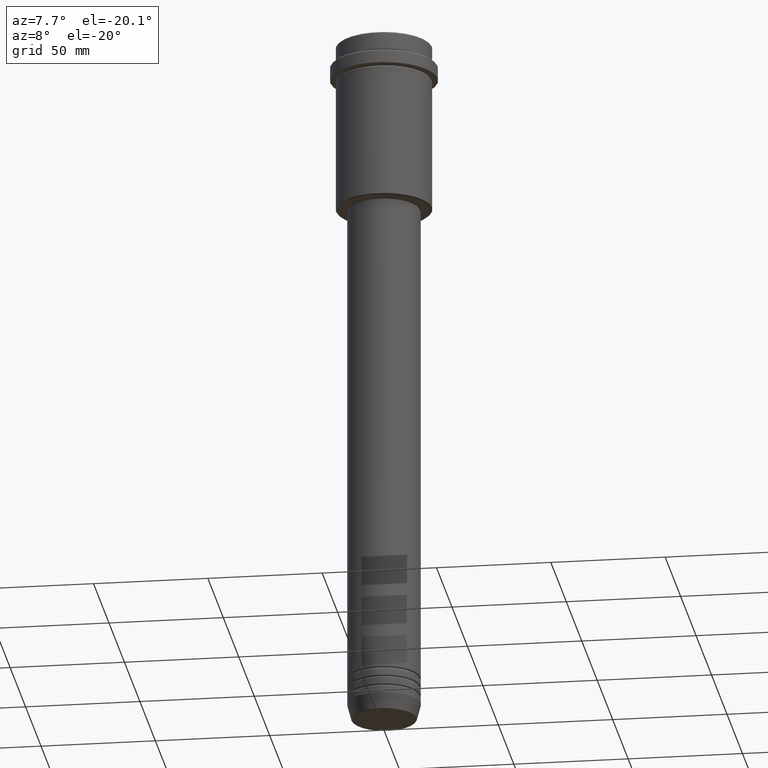
[diagram: clean part render]
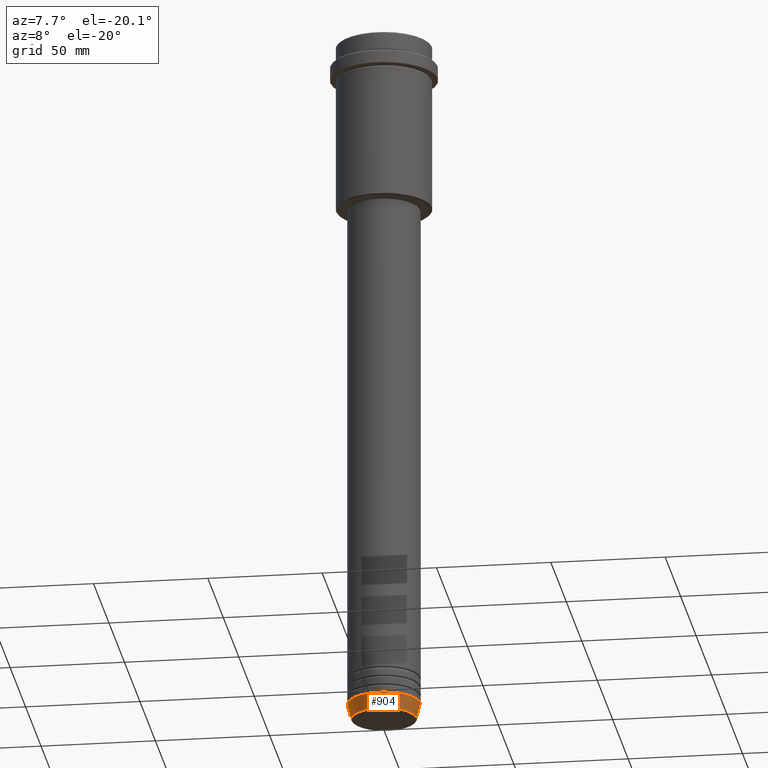
[diagram: same view with one face highlighted and labeled with its STEP entity id]
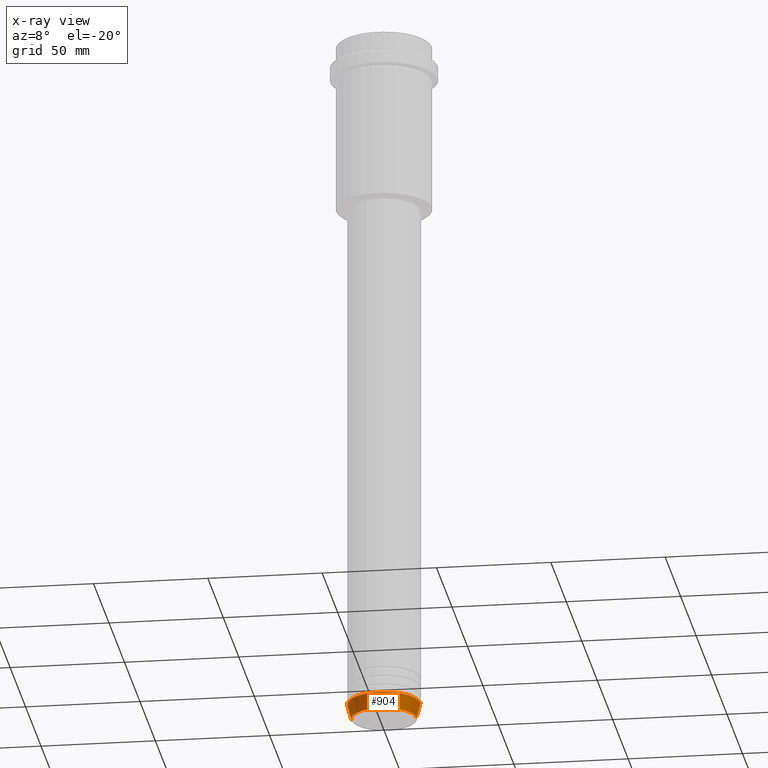
[diagram: x-ray of the same camera — body ghosted, the highlighted face saturated]
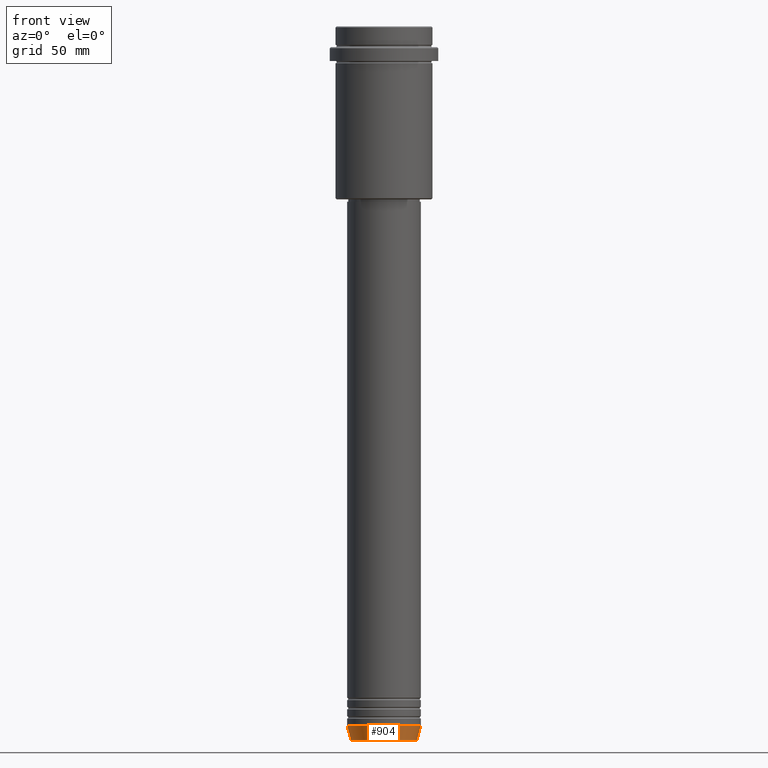
[diagram: same view with one face highlighted and labeled with its STEP entity id]
A machine part, auxiliary view. The second image highlights one B-rep face of the part: STEP entity #904.
The next image is the same camera in x-ray: the body ghosted, the highlighted face saturated — about 0% of this face is hidden behind the body in this view.
A second angle (front view) of the same face is appended — the face is thin or edge-on in the first view.
In plain terms, the highlighted conical surface has half-angle 15 deg.
Its self-contained STEP definition (entity closure, byte-faithful):
#16 = ORIENTED_EDGE ( 'NONE', *, *, #603, .F. ) ;
#37 = DIRECTION ( 'NONE',  ( 1.000000000000000000, 0.000000000000000000, 0.000000000000000000 ) ) ;
#42 = ORIENTED_EDGE ( 'NONE', *, *, #55, .T. ) ;
#55 = EDGE_CURVE ( 'NONE', #349, #737, #1252, .T. ) ;
#68 = VECTOR ( 'NONE', #1220, 1000.000000000000000 ) ;
#75 = DIRECTION ( 'NONE',  ( 1.000000000000000000, 0.000000000000000000, 0.000000000000000000 ) ) ;
#80 = ORIENTED_EDGE ( 'NONE', *, *, #978, .F. ) ;
#104 = DIRECTION ( 'NONE',  ( 1.000000000000000000, 0.000000000000000000, 0.000000000000000000 ) ) ;
#111 = CIRCLE ( 'NONE', #442, 16.00000000000000000 ) ;
#172 = CARTESIAN_POINT ( 'NONE',  ( -14.22365507213718772, 1.850665122131323337E-15, -309.6294095225512706 ) ) ;
#243 = CARTESIAN_POINT ( 'NONE',  ( -16.00000000000000000, 1.959434878635765131E-15, -303.0000000000000000 ) ) ;
#250 = VERTEX_POINT ( 'NONE', #608 ) ;
#275 = VECTOR ( 'NONE', #456, 1000.000000000000000 ) ;
#349 = VERTEX_POINT ( 'NONE', #172 ) ;
#395 = CARTESIAN_POINT ( 'NONE',  ( 14.22365507213718772, 0.000000000000000000, -309.6294095225512706 ) ) ;
#442 = AXIS2_PLACEMENT_3D ( 'NONE', #576, #1333, #37 ) ;
#451 = DIRECTION ( 'NONE',  ( -0.000000000000000000, -0.000000000000000000, 1.000000000000000000 ) ) ;
#456 = DIRECTION ( 'NONE',  ( -0.2588190451025213501, 3.169619151431772337E-17, 0.9659258262890680902 ) ) ;
#532 = FACE_OUTER_BOUND ( 'NONE', #909, .T. ) ;
#576 = CARTESIAN_POINT ( 'NONE',  ( 0.000000000000000000, 0.000000000000000000, -303.0000000000000000 ) ) ;
#583 = VERTEX_POINT ( 'NONE', #1215 ) ;
#603 = EDGE_CURVE ( 'NONE', #349, #583, #1335, .T. ) ;
#608 = CARTESIAN_POINT ( 'NONE',  ( 16.00000000000000000, 0.000000000000000000, -303.0000000000000000 ) ) ;
#655 = CARTESIAN_POINT ( 'NONE',  ( 0.000000000000000000, 0.000000000000000000, -303.0000000000000000 ) ) ;
#737 = VERTEX_POINT ( 'NONE', #395 ) ;
#794 = LINE ( 'NONE', #1132, #68 ) ;
#797 = ORIENTED_EDGE ( 'NONE', *, *, #1066, .T. ) ;
#854 = AXIS2_PLACEMENT_3D ( 'NONE', #655, #451, #104 ) ;
#904 = ADVANCED_FACE ( 'NONE', ( #532 ), #1101, .T. ) ;
#909 = EDGE_LOOP ( 'NONE', ( #16, #42, #797, #80 ) ) ;
#978 = EDGE_CURVE ( 'NONE', #583, #250, #111, .T. ) ;
#1001 = DIRECTION ( 'NONE',  ( -0.000000000000000000, -0.000000000000000000, 1.000000000000000000 ) ) ;
#1064 = CARTESIAN_POINT ( 'NONE',  ( 0.000000000000000000, 0.000000000000000000, -309.6294095225512706 ) ) ;
#1066 = EDGE_CURVE ( 'NONE', #737, #250, #794, .T. ) ;
#1101 = CONICAL_SURFACE ( 'NONE', #854, 16.00000000000000000, 0.2617993877991500740 ) ;
#1132 = CARTESIAN_POINT ( 'NONE',  ( 16.00000000000000000, 0.000000000000000000, -303.0000000000000000 ) ) ;
#1164 = AXIS2_PLACEMENT_3D ( 'NONE', #1064, #1001, #75 ) ;
#1215 = CARTESIAN_POINT ( 'NONE',  ( -16.00000000000000000, 1.959434878635765131E-15, -303.0000000000000000 ) ) ;
#1220 = DIRECTION ( 'NONE',  ( 0.2588190451025213501, 0.000000000000000000, 0.9659258262890680902 ) ) ;
#1252 = CIRCLE ( 'NONE', #1164, 14.22365507213718772 ) ;
#1333 = DIRECTION ( 'NONE',  ( -0.000000000000000000, -0.000000000000000000, 1.000000000000000000 ) ) ;
#1335 = LINE ( 'NONE', #243, #275 ) ;